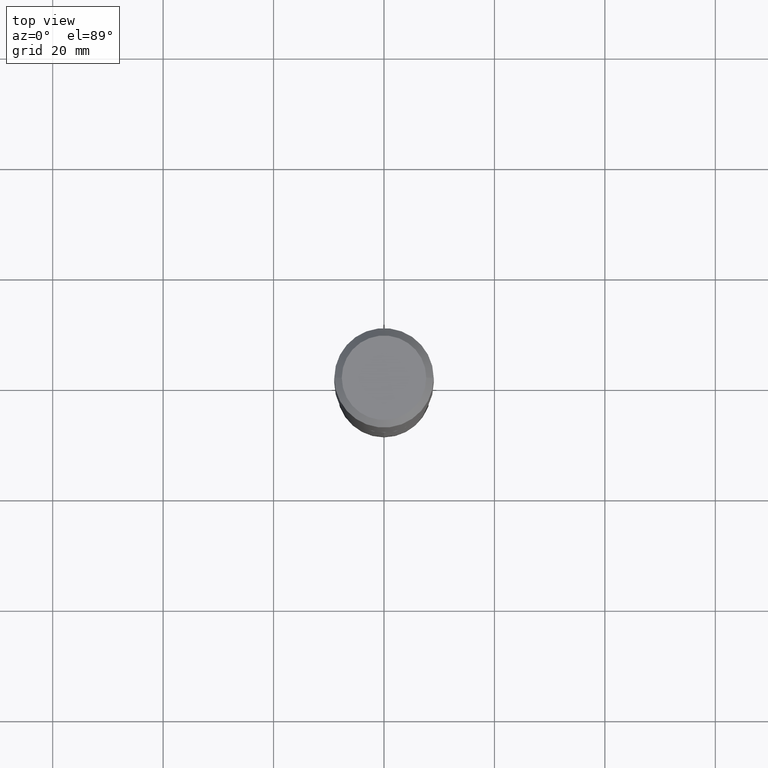
[diagram: clean part render]
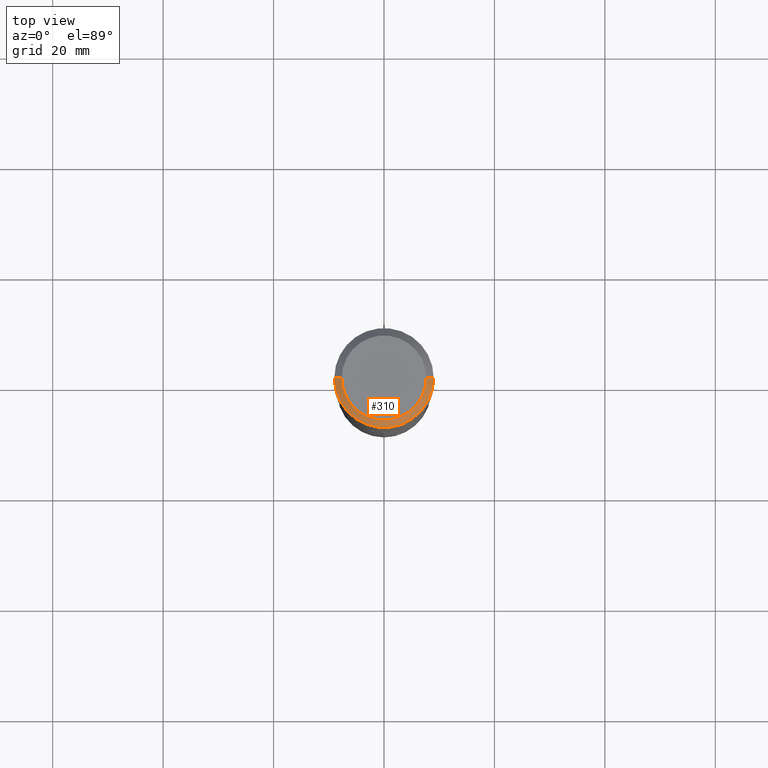
[diagram: same view with one face highlighted and labeled with its STEP entity id]
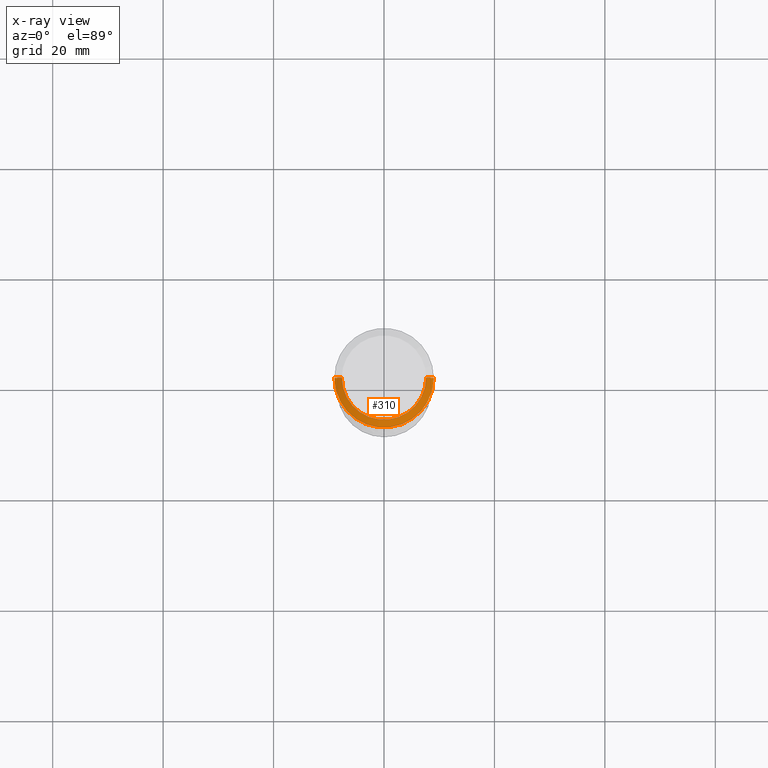
[diagram: x-ray of the same camera — body ghosted, the highlighted face saturated]
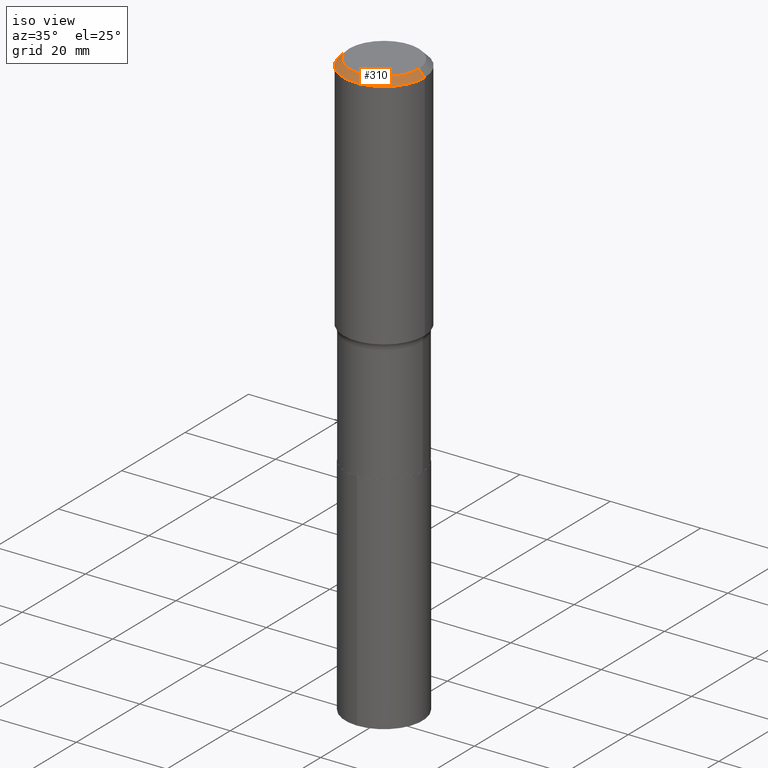
[diagram: same view with one face highlighted and labeled with its STEP entity id]
A machine part, top view. The second image highlights one B-rep face of the part: STEP entity #310.
The next image is the same camera in x-ray: the body ghosted, the highlighted face saturated — about 0% of this face is hidden behind the body in this view.
A second angle (iso view) of the same face is appended — the face is thin or edge-on in the first view.
In plain terms, the highlighted conical surface has half-angle 45 deg.
Its self-contained STEP definition (entity closure, byte-faithful):
#22 = VERTEX_POINT ( 'NONE', #180 ) ;
#23 = LINE ( 'NONE', #250, #128 ) ;
#26 = AXIS2_PLACEMENT_3D ( 'NONE', #259, #155, #70 ) ;
#46 = VERTEX_POINT ( 'NONE', #296 ) ;
#49 = DIRECTION ( 'NONE',  ( -1.000000000000000000, 6.982962677686266711E-15, 0.000000000000000000 ) ) ;
#53 = EDGE_CURVE ( 'NONE', #173, #22, #23, .T. ) ;
#56 = FACE_OUTER_BOUND ( 'NONE', #382, .T. ) ;
#70 = DIRECTION ( 'NONE',  ( 1.000000000000000000, -6.982962677686266711E-15, 4.876239486148337140E-29 ) ) ;
#82 = VECTOR ( 'NONE', #159, 39.37007874015748854 ) ;
#128 = VECTOR ( 'NONE', #221, 39.37007874015748854 ) ;
#131 = ORIENTED_EDGE ( 'NONE', *, *, #53, .F. ) ;
#136 = CIRCLE ( 'NONE', #194, 0.3543499999999999983 ) ;
#138 = VERTEX_POINT ( 'NONE', #426 ) ;
#155 = DIRECTION ( 'NONE',  ( -2.445468806185136597E-29, 3.491481338843145583E-15, 1.000000000000000000 ) ) ;
#159 = DIRECTION ( 'NONE',  ( -0.7071067811865444641, 2.468850131082225506E-15, -0.7071067811865503483 ) ) ;
#173 = VERTEX_POINT ( 'NONE', #336 ) ;
#180 = CARTESIAN_POINT ( 'NONE',  ( 0.3543499999999999983, -2.659993786700990565E-15, -0.05315250000000043551 ) ) ;
#194 = AXIS2_PLACEMENT_3D ( 'NONE', #195, #332, #335 ) ;
#195 = CARTESIAN_POINT ( 'NONE',  ( 1.299827807207565248E-30, -1.855809618628617968E-16, -0.05315250000000043551 ) ) ;
#205 = ORIENTED_EDGE ( 'NONE', *, *, #299, .T. ) ;
#221 = DIRECTION ( 'NONE',  ( 0.7071067811865444641, -7.319954787623245001E-15, -0.7071067811865503483 ) ) ;
#234 = CONICAL_SURFACE ( 'NONE', #241, 0.3543499999999999983, 0.7853981633974441712 ) ;
#241 = AXIS2_PLACEMENT_3D ( 'NONE', #313, #411, #49 ) ;
#248 = CIRCLE ( 'NONE', #26, 0.3011975000000000069 ) ;
#250 = CARTESIAN_POINT ( 'NONE',  ( 0.3543499999999999983, -2.616598427373204262E-15, -0.05315250000000043551 ) ) ;
#259 = CARTESIAN_POINT ( 'NONE',  ( -1.002970424325033577E-46, 1.431975951230896212E-32, 4.101342130344485961E-18 ) ) ;
#273 = CARTESIAN_POINT ( 'NONE',  ( -0.3543499999999999983, 2.288831862975266823E-15, -0.05315250000000043551 ) ) ;
#296 = CARTESIAN_POINT ( 'NONE',  ( -0.3011975000000000069, 2.196041382043837860E-15, 4.101342130329452923E-18 ) ) ;
#299 = EDGE_CURVE ( 'NONE', #46, #138, #468, .T. ) ;
#310 = ADVANCED_FACE ( 'NONE', ( #56 ), #234, .T. ) ;
#313 = CARTESIAN_POINT ( 'NONE',  ( 1.299827807207565248E-30, -1.855809618628617968E-16, -0.05315250000000043551 ) ) ;
#332 = DIRECTION ( 'NONE',  ( -2.445468806185136597E-29, 3.491481338843145583E-15, 1.000000000000000000 ) ) ;
#335 = DIRECTION ( 'NONE',  ( 1.000000000000000000, -6.982962677686266711E-15, 0.000000000000000000 ) ) ;
#336 = CARTESIAN_POINT ( 'NONE',  ( 0.3011975000000000069, -2.341481636528497322E-15, 4.101342130360026675E-18 ) ) ;
#358 = EDGE_CURVE ( 'NONE', #138, #22, #136, .T. ) ;
#382 = EDGE_LOOP ( 'NONE', ( #131, #455, #205, #412 ) ) ;
#411 = DIRECTION ( 'NONE',  ( 2.445468806185136597E-29, -3.491481338843145583E-15, -1.000000000000000000 ) ) ;
#412 = ORIENTED_EDGE ( 'NONE', *, *, #358, .T. ) ;
#416 = EDGE_CURVE ( 'NONE', #46, #173, #248, .T. ) ;
#426 = CARTESIAN_POINT ( 'NONE',  ( -0.3543499999999999983, -1.211807874709259447E-15, -0.05315250000000043551 ) ) ;
#455 = ORIENTED_EDGE ( 'NONE', *, *, #416, .F. ) ;
#468 = LINE ( 'NONE', #273, #82 ) ;